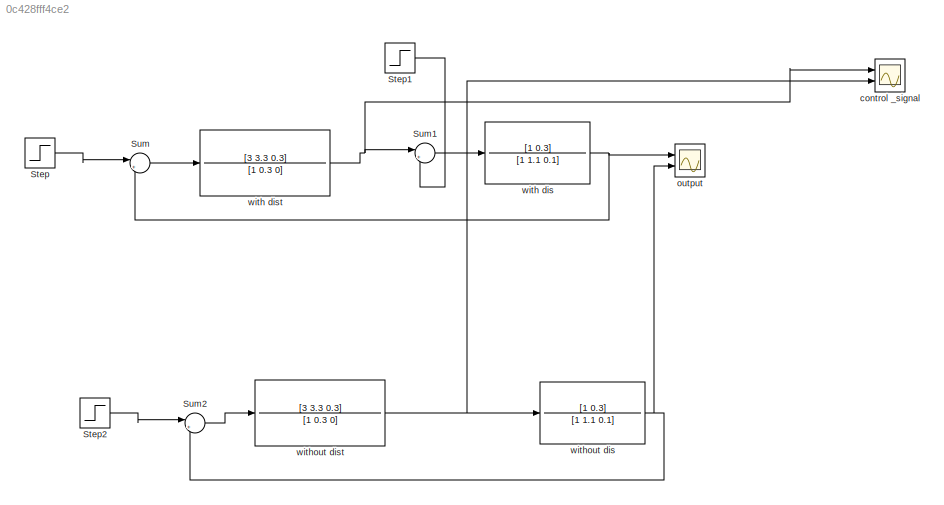
MODEL slx_0c428fff4ce2
KIND model
CONFIG AbsTol = auto
CONFIG EnableMultiTasking = off
CONFIG FixedStep = auto
CONFIG MaxStep = auto
CONFIG MinStep = auto
CONFIG RelTol = 1e-3
CONFIG SampleTimeConstraint = Unconstrained
CONFIG SolverName = VariableStepAuto
CONFIG StartTime = 0.0
CONFIG StopTime = 50
BLOCK [Step] Step
  SampleTime = 0
  Time = 0
BLOCK [Step] Step1
  SampleTime = 0
  Time = 0
BLOCK [Step] Step2
  SampleTime = 0
  Time = 0
BLOCK [Sum] Sum
  Inputs = |+-
  Ports = [2, 1]
BLOCK [Sum] Sum1
  Inputs = |++
  Ports = [2, 1]
BLOCK [Sum] Sum2
  Inputs = |+-
  Ports = [2, 1]
BLOCK [Scope] control _signal
  Floating = off
  NumInputPorts = 2
  Ports = [2]
  ScopeSpecificationString = Simulink.scopes.TimeScopeBlockCfg('CurrentConfiguration', extmgr.ConfigurationSet(extmgr.Configuration('Core','General UI',true),extmgr.Configuration('Core','Source UI',true),extmgr.Configuration('Sources','WiredSimulink',true,'DataLoggingVariableName','ScopeData1'),extmgr.Configuration('Visuals','Time Domain',true,'SerializedDisplays',{struct('MinYLimReal','-1.125','MaxYLimReal','3.45833','YLabel...<+1456ch>
BLOCK [Scope] output
  Floating = off
  NumInputPorts = 2
  Ports = [2]
  ScopeSpecificationString = Simulink.scopes.TimeScopeBlockCfg('CurrentConfiguration', extmgr.ConfigurationSet(extmgr.Configuration('Core','General UI',true),extmgr.Configuration('Core','Source UI',true),extmgr.Configuration('Sources','WiredSimulink',true),extmgr.Configuration('Visuals','Time Domain',true,'SerializedDisplays',{struct('MinYLimReal','-0.14281','MaxYLimReal','1.28532','YLabelReal','','MinYLimMag','0.00000','MaxY...<+1419ch>
BLOCK [TransferFcn] with dis
  Denominator = [1 1.1 0.1]
  Numerator = [1 0.3]
BLOCK [TransferFcn] with dist
  Denominator = [1 0.3 0]
  Numerator = [3 3.3 0.3]
BLOCK [TransferFcn] without dis
  Denominator = [1 1.1 0.1]
  Numerator = [1 0.3]
BLOCK [TransferFcn] without dist
  Denominator = [1 0.3 0]
  Numerator = [3 3.3 0.3]
LINE Step1:1 -> Sum1:2
LINE Step2:1 -> Sum2:1
LINE Step:1 -> Sum:1
LINE Sum1:1 -> with dis:1
LINE Sum2:1 -> without dist:1
LINE Sum:1 -> with dist:1
NET with dis:1 -> Sum:2, output:1
NET with dist:1 -> Sum1:1, control _signal:1
NET without dis:1 -> Sum2:2, output:2
NET without dist:1 -> control _signal:2, without dis:1
note: NET lines group one-source signal fan-out (src -> all destinations, sorted); 1:1 wires keep LINE
